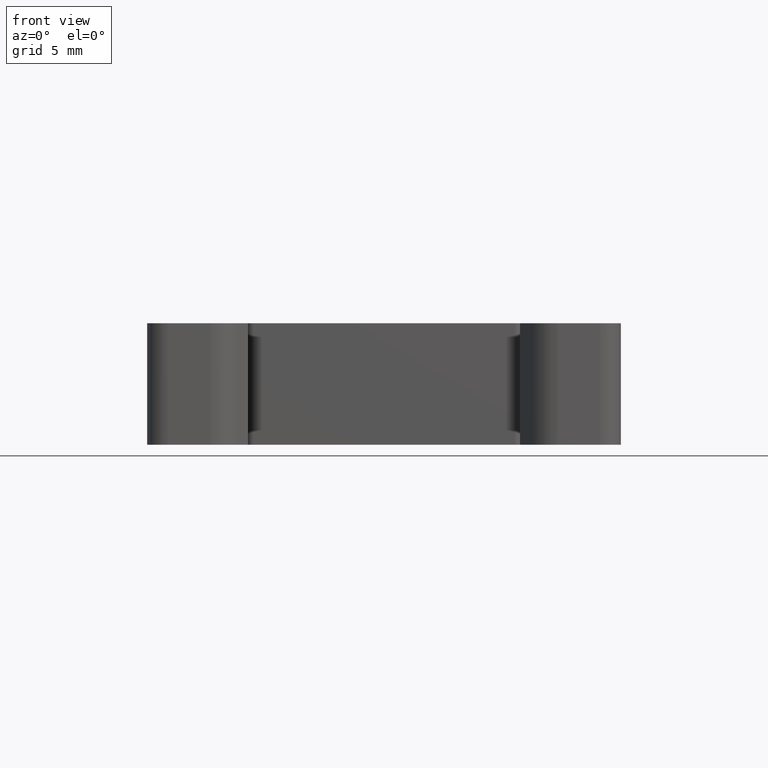
[diagram: clean part render]
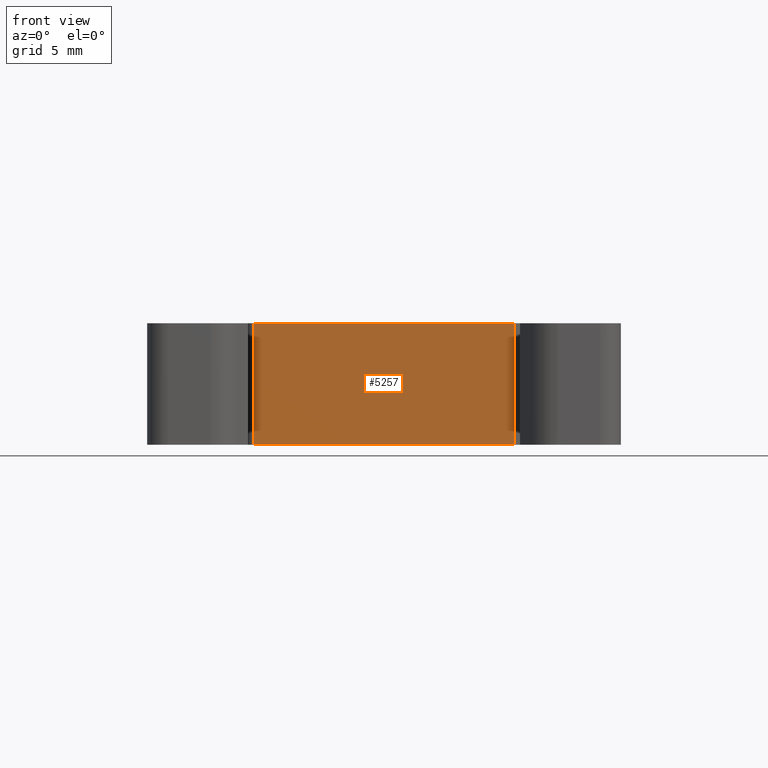
[diagram: same view with one face highlighted and labeled with its STEP entity id]
A machine part, front view. The second image highlights one B-rep face of the part: STEP entity #5257.
In plain terms, the highlighted planar face has unit normal (-0, -1, 0).
Its self-contained STEP definition (entity closure, byte-faithful):
#463 = CARTESIAN_POINT ( 'NONE',  ( 284.9361419504994600, 433.5003637536095800, -76.70114467945950300 ) ) ;
#481 = LINE ( 'NONE', #463, #6339 ) ;
#486 = DIRECTION ( 'NONE',  ( -0.0000000000000000000, -0.0000000000000000000, -1.000000000000000000 ) ) ;
#693 = DIRECTION ( 'NONE',  ( 1.000000000000000000, 0.0000000000000000000, -0.0000000000000000000 ) ) ;
#695 = CARTESIAN_POINT ( 'NONE',  ( 299.7859378434524700, 433.5003637536095800, -45.43000000000000000 ) ) ;
#702 = LINE ( 'NONE', #695, #6370 ) ;
#706 = LINE ( 'NONE', #729, #6415 ) ;
#724 = DIRECTION ( 'NONE',  ( 1.000000000000000000, -8.741913579725991000E-015, 0.0000000000000000000 ) ) ;
#729 = CARTESIAN_POINT ( 'NONE',  ( 291.2853385539704600, 433.5003637536095200, -51.32999999999999800 ) ) ;
#1983 = CARTESIAN_POINT ( 'NONE',  ( 284.9361419504994600, 433.5003637536095800, -51.32999999999999800 ) ) ;
#2001 = CARTESIAN_POINT ( 'NONE',  ( 284.9361419504994600, 433.5003637536095800, -45.43000000000000000 ) ) ;
#2045 = CARTESIAN_POINT ( 'NONE',  ( 297.6357337364079900, 433.5003637536094600, -51.32999999999999800 ) ) ;
#2145 = CARTESIAN_POINT ( 'NONE',  ( 297.6357337364079900, 433.5003637536095200, -45.43000000000000000 ) ) ;
#2568 = EDGE_LOOP ( 'NONE', ( #3139, #3111, #3112, #3088 ) ) ;
#2683 = VERTEX_POINT ( 'NONE', #1983 ) ;
#2698 = VERTEX_POINT ( 'NONE', #2001 ) ;
#2717 = VERTEX_POINT ( 'NONE', #2045 ) ;
#2789 = VERTEX_POINT ( 'NONE', #2145 ) ;
#3088 = ORIENTED_EDGE ( 'NONE', *, *, #5422, .T. ) ;
#3111 = ORIENTED_EDGE ( 'NONE', *, *, #5092, .T. ) ;
#3112 = ORIENTED_EDGE ( 'NONE', *, *, #5165, .T. ) ;
#3139 = ORIENTED_EDGE ( 'NONE', *, *, #5160, .F. ) ;
#3814 = FACE_OUTER_BOUND ( 'NONE', #2568, .T. ) ;
#3821 = PLANE ( 'NONE',  #6538 ) ;
#3830 = DIRECTION ( 'NONE',  ( -8.741913579725991000E-015, -1.000000000000000000, 0.0000000000000000000 ) ) ;
#3856 = CARTESIAN_POINT ( 'NONE',  ( 291.2853385539704600, 433.5003637536095200, -76.70114467945950300 ) ) ;
#3861 = DIRECTION ( 'NONE',  ( 1.000000000000000000, -8.741913579725991000E-015, 0.0000000000000000000 ) ) ;
#4633 = CARTESIAN_POINT ( 'NONE',  ( 297.6357337364079900, 433.5003637536094600, -76.70114467945950300 ) ) ;
#4643 = LINE ( 'NONE', #4633, #5856 ) ;
#4662 = DIRECTION ( 'NONE',  ( 0.0000000000000000000, 0.0000000000000000000, 1.000000000000000000 ) ) ;
#5092 = EDGE_CURVE ( 'NONE', #2698, #2683, #481, .T. ) ;
#5160 = EDGE_CURVE ( 'NONE', #2698, #2789, #702, .T. ) ;
#5165 = EDGE_CURVE ( 'NONE', #2683, #2717, #706, .T. ) ;
#5257 = ADVANCED_FACE ( 'NONE', ( #3814 ), #3821, .T. ) ;
#5422 = EDGE_CURVE ( 'NONE', #2717, #2789, #4643, .T. ) ;
#5856 = VECTOR ( 'NONE', #4662, 1000.000000000000000 ) ;
#6339 = VECTOR ( 'NONE', #486, 1000.000000000000000 ) ;
#6370 = VECTOR ( 'NONE', #693, 1000.000000000000000 ) ;
#6415 = VECTOR ( 'NONE', #724, 1000.000000000000000 ) ;
#6538 = AXIS2_PLACEMENT_3D ( 'NONE', #3856, #3830, #3861 ) ;